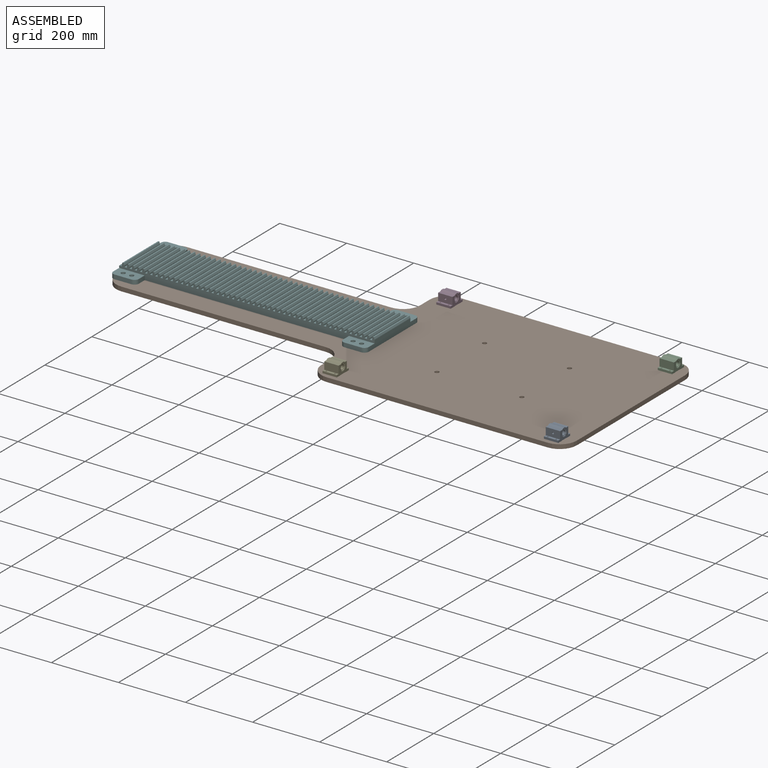
[diagram: assembled view]
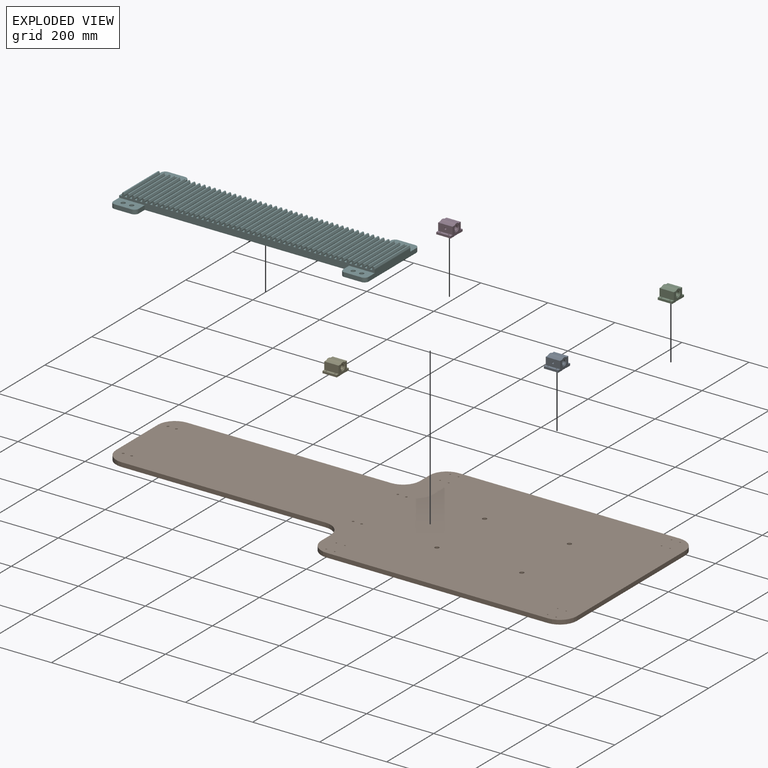
[diagram: exploded view]
GUIDED TOUR — MATED ASSEMBLY (Onshape document 529169e92f64153c733b8e30, AutoMate assembly 529169e92f64153c733b8e30_39c6d6c668530949ad70a255_f9c285f907397268ab07fada_default)

This assembly has 6 components, labeled P0..P5 below (a component is one placed occurrence of a part; the same part can appear more than once), held together by 5 mates. A mate is a constraint between two components; its type names the relative motion it leaves free:
  FASTENED — locks the two components together rigidly (no relative motion).
Axis/direction vectors are unit vectors and 'through' points are millimeter coordinates, both in the assembly's world frame.

MATES
  1. FASTENED "Fastened 2": P3 <-> P1, direction (0.000, 0.000, -1.000) through (443.78, 386.84, -166.92) mm
  2. FASTENED "Fastened 1": P2 <-> P1, direction (0.000, 0.000, -1.000) through (1104.18, 386.84, -166.92) mm
  3. FASTENED "Fastened 4": P0 <-> P1, direction (0.000, 0.000, -1.000) through (1078.78, -98.10, -166.92) mm
  4. FASTENED "Fastened 5": P5 <-> P1, direction (0.000, 0.000, -1.000) through (-305.52, 218.19, -166.92) mm
  5. FASTENED "Fastened 3": P4 <-> P1, direction (0.000, 0.000, -1.000) through (443.78, -140.96, -166.92) mm

ASSEMBLY ORDER
  1. P4 — the base component [order verified]
  2. P3 [order verified]
  3. P2 [order verified]
  4. P0 [order verified]
  5. P5 [order verified]
  6. P1 [order verified]
Order-tag legend:
  [order verified] — this step's position reverses a verified removal order: the component was checked to insert without passing through the ones already placed.

Of the 6 components, 2 carry the full construction recipe — the FeatureScript program that regenerates the part's solid from scratch; the rest are supplied as boundary geometry only.
Each toured component is shown spotlighted twice — in the assembled view, then in the exploded view, where a leader line traces a displaced component back to its assembled socket (saturated green if recipe-attached, orange if geometry-only; every other component desaturated gray) — followed by its recipe or geometry summary and the mates that hold it.
NOTE — this tour is split across 3 documents so each fits a 32k-token context. This is document 1: the component sections continue in the remaining 2 documents, each repeating the header above.
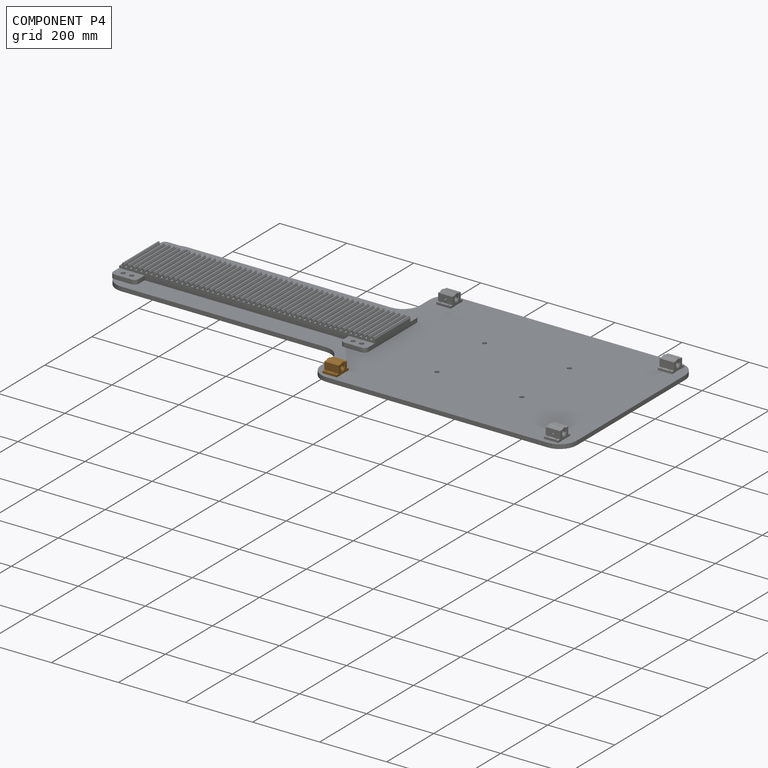
[diagram: component P4 — assembled]
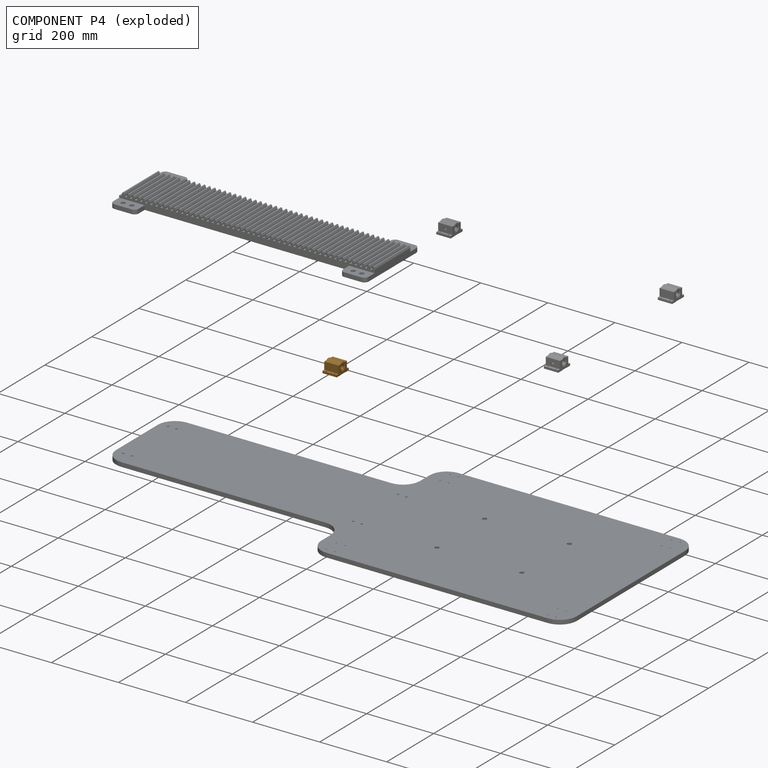
[diagram: component P4 — exploded]
COMPONENT P4 — geometry summary (no construction recipe available for this part):
  bounding box: 50.8 x 42.9 x 31.8 mm
  B-rep topology: 1 solid, 939 faces, 5432 edges
  volume: 42037 mm^3 (61% of its bounding box)
  symmetry: mirror-symmetric across its z mid-plane
Held by: FASTENED mate "Fastened 3" to P1.
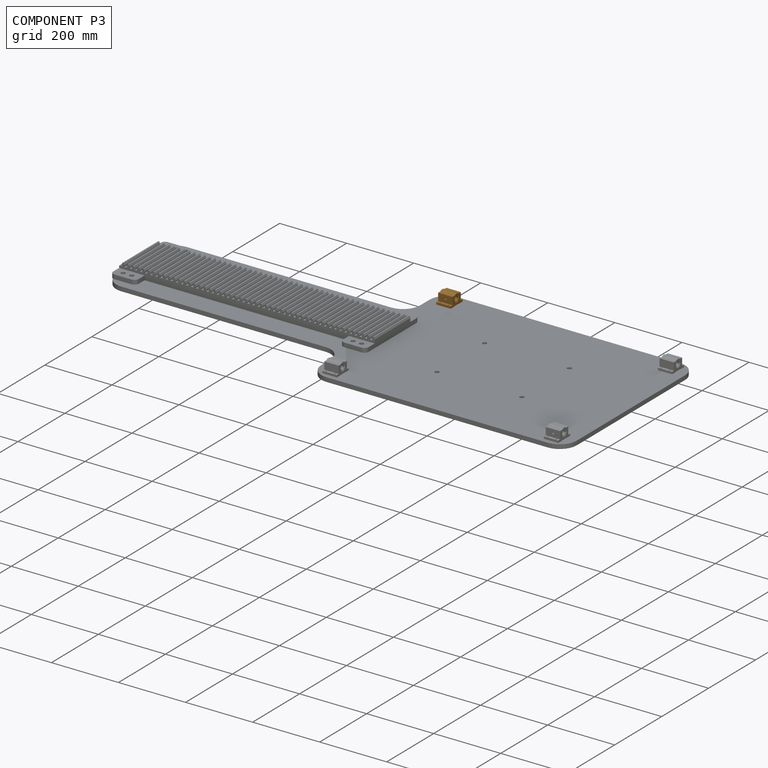
[diagram: component P3 — assembled]
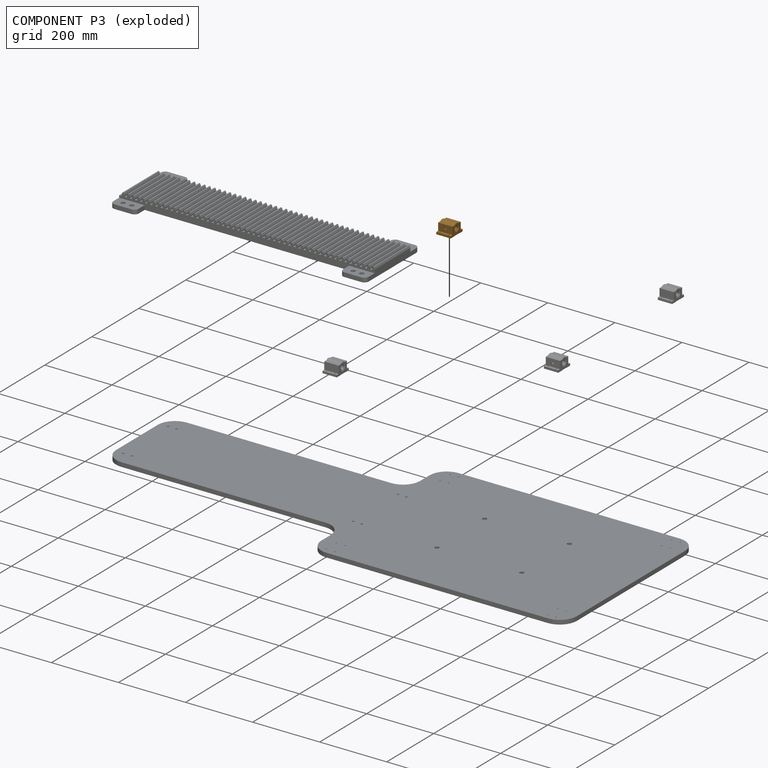
[diagram: component P3 — exploded]
COMPONENT P3 — geometry summary (no construction recipe available for this part):
  bounding box: 50.8 x 42.9 x 31.8 mm
  B-rep topology: 1 solid, 939 faces, 5432 edges
  volume: 42037 mm^3 (61% of its bounding box)
  symmetry: mirror-symmetric across its z mid-plane
Held by: FASTENED mate "Fastened 2" to P1.
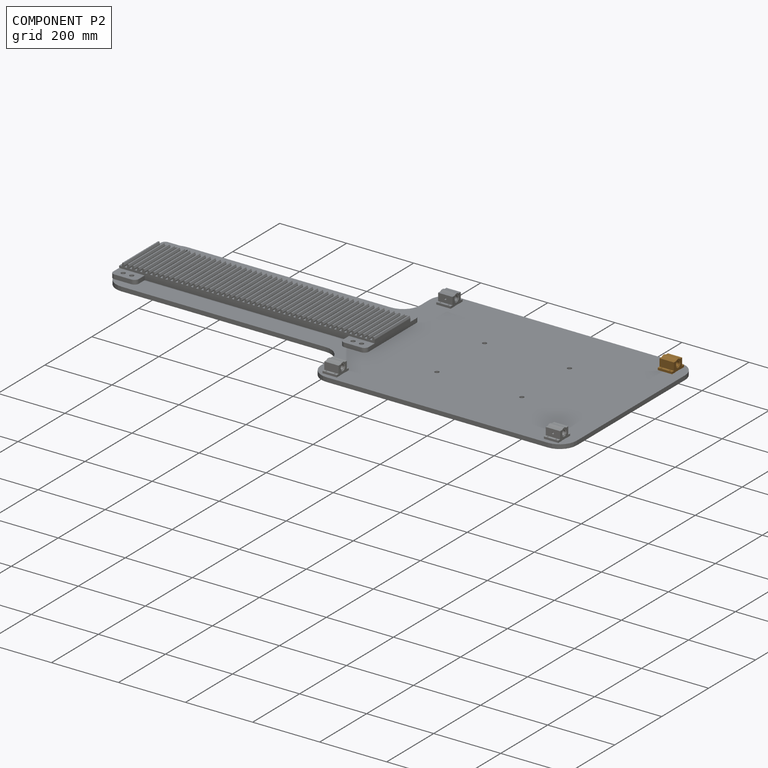
[diagram: component P2 — assembled]
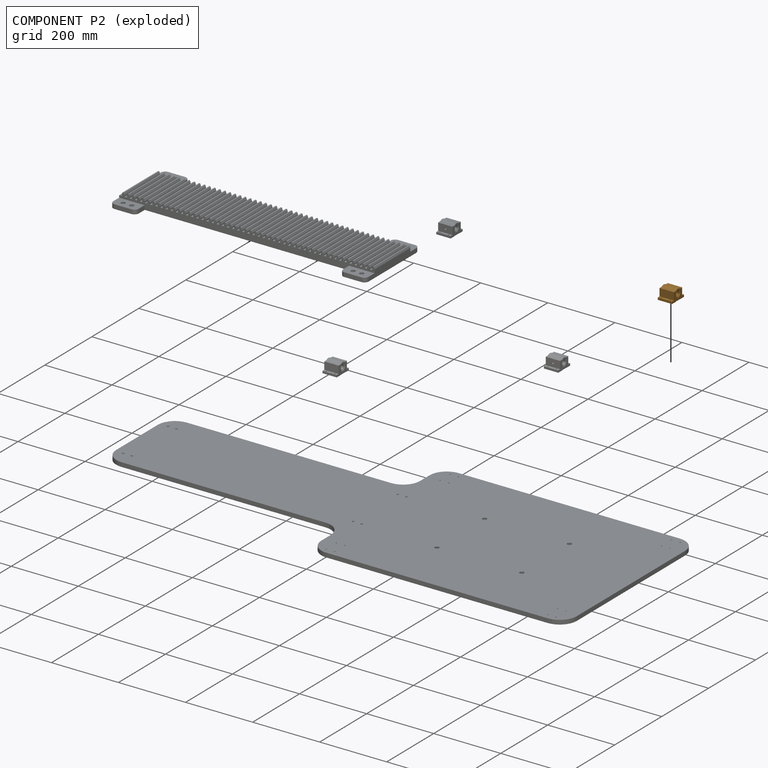
[diagram: component P2 — exploded]
COMPONENT P2 — geometry summary (no construction recipe available for this part):
  bounding box: 50.8 x 42.9 x 31.8 mm
  B-rep topology: 1 solid, 939 faces, 5432 edges
  volume: 42037 mm^3 (61% of its bounding box)
  symmetry: mirror-symmetric across its z mid-plane
Held by: FASTENED mate "Fastened 1" to P1.
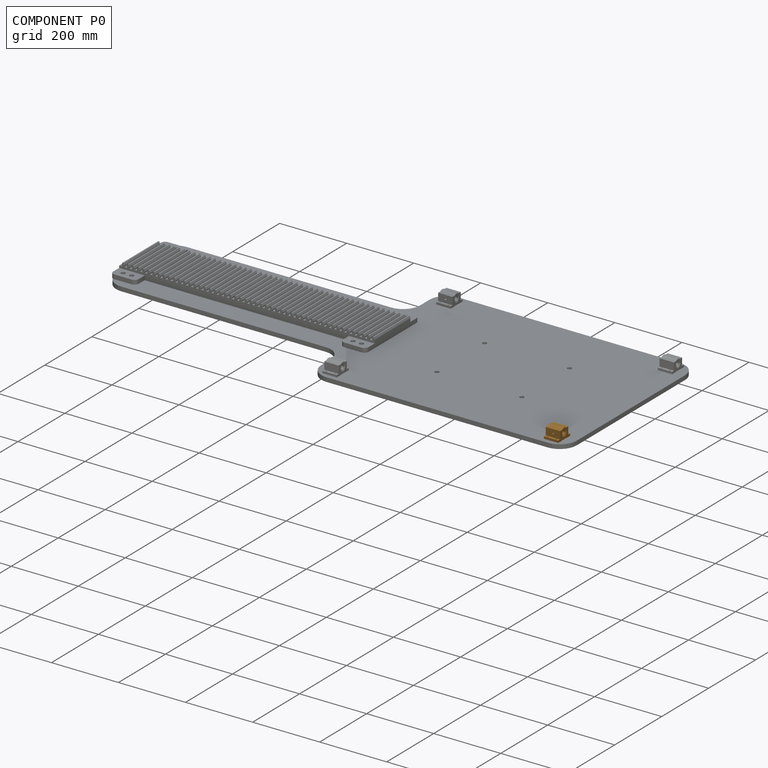
[diagram: component P0 — assembled]
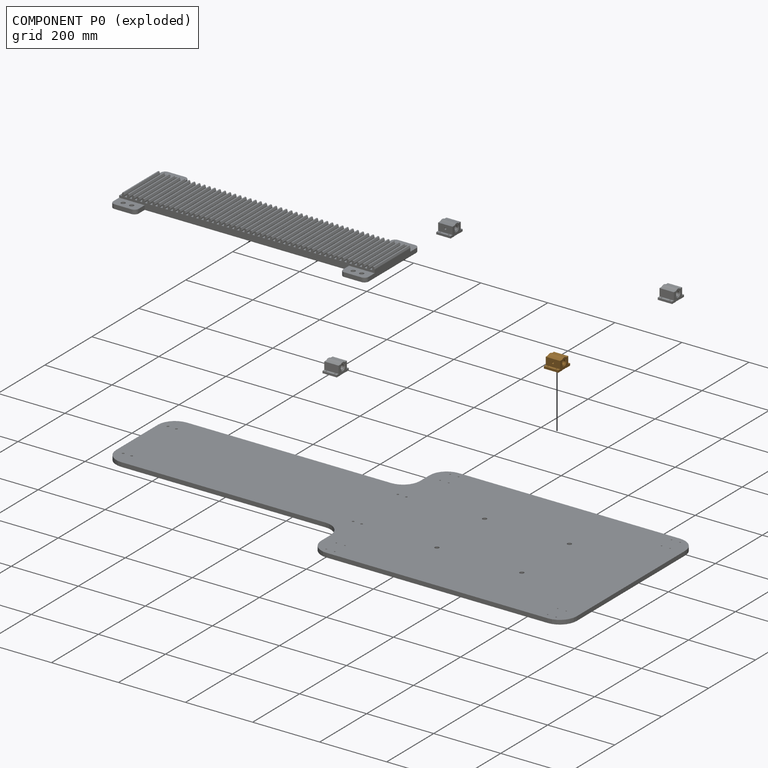
[diagram: component P0 — exploded]
COMPONENT P0 — geometry summary (no construction recipe available for this part):
  bounding box: 50.8 x 42.9 x 31.8 mm
  B-rep topology: 1 solid, 939 faces, 5432 edges
  volume: 42037 mm^3 (61% of its bounding box)
  symmetry: mirror-symmetric across its z mid-plane
Held by: FASTENED mate "Fastened 4" to P1.
